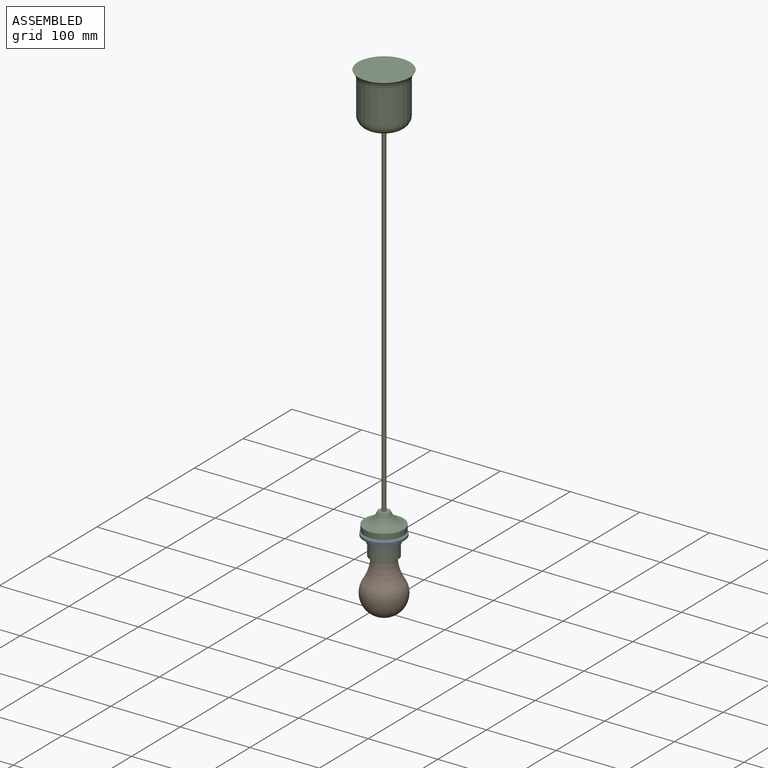
[diagram: assembled view]
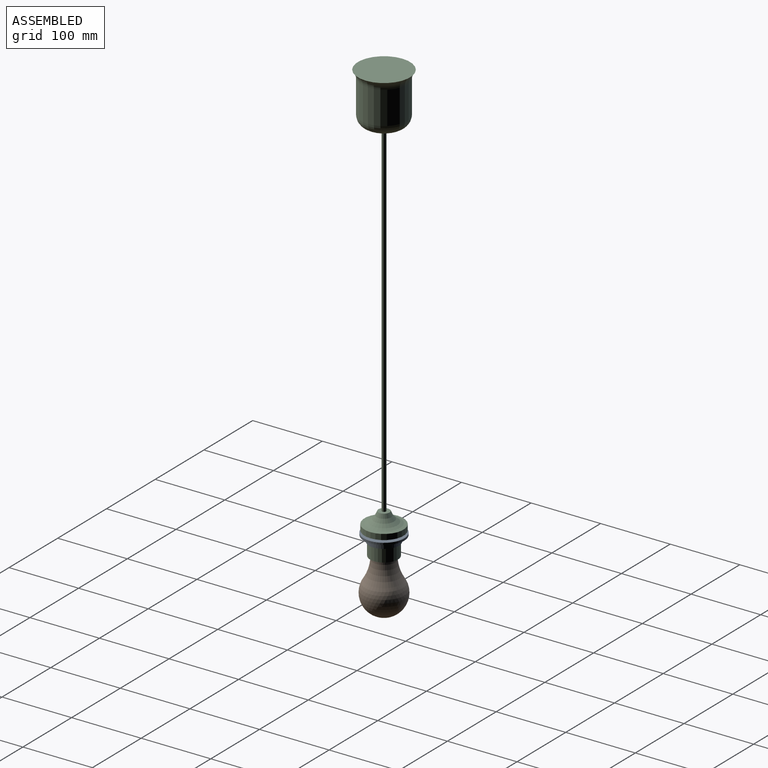
[diagram: assembled view, second angle]
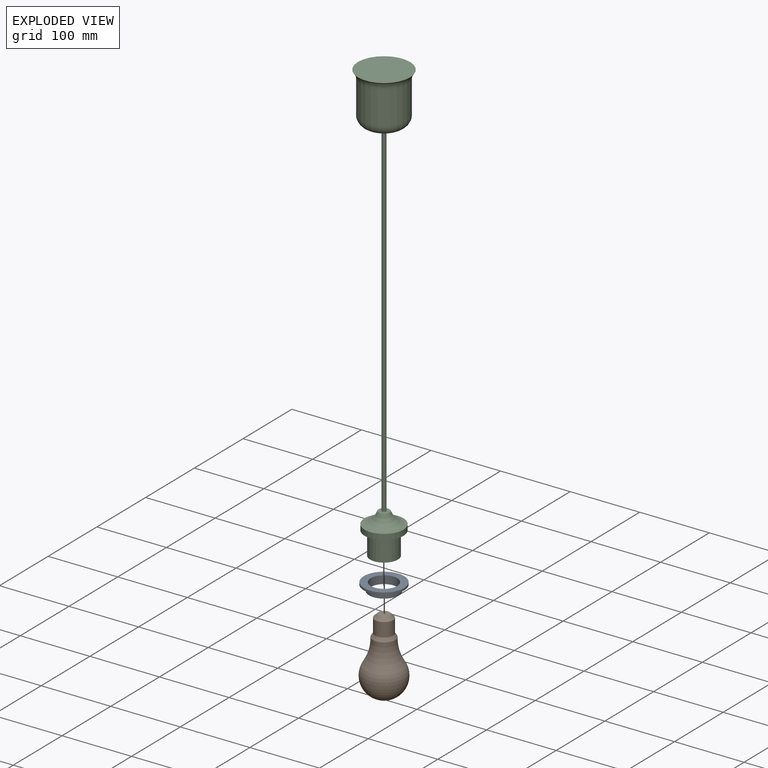
[diagram: exploded view]
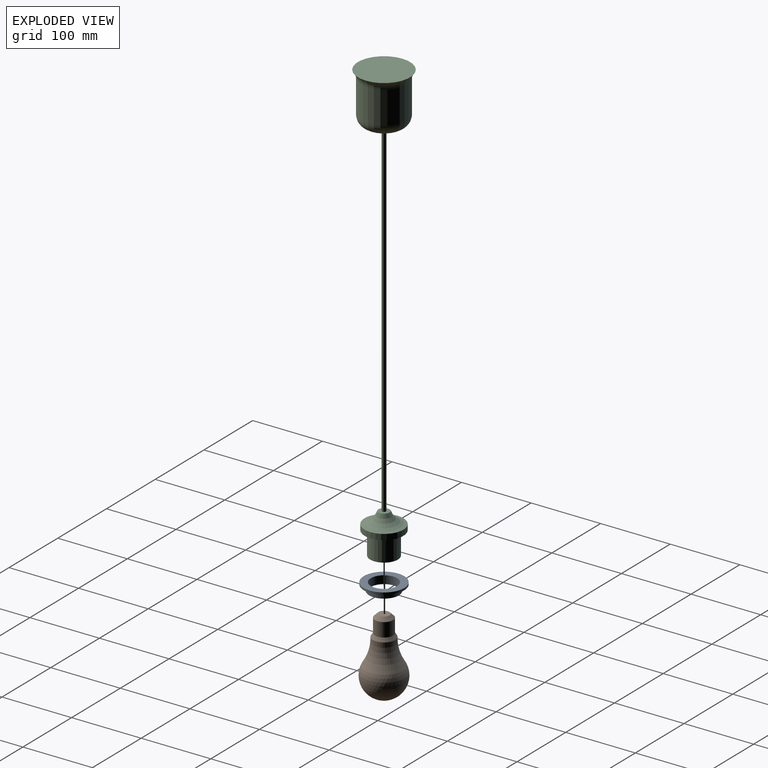
[diagram: exploded view, second angle]
ASSEMBLY  parts=3 mates=4
PART A: 6 faces, bbox 58.1x58.1x11.5 mm
  f0: cylinder r=19mm len=38mm, axis (0,0,-1), area 1372.9mm2, adj f1,f5
  f1: plane 58.1x58.1mm, normal (0,0,-1), area 1517.3mm2, adj f0,f2
  f2: cylinder r=29.05mm len=58.1mm, axis (0,0,-1), area 547.6mm2, adj f1,f3
  f3: plane 58.1x58.1mm, normal (0,0,1), area 1199.2mm2, adj f2,f4
  f4: cylinder r=21.5mm len=43mm, axis (0,0,-1), area 1148.3mm2, adj f3,f5
  f5: plane 43x43mm, normal (0,0,1), area 318.1mm2, adj f0,f4
PART B: 6 faces, bbox 72.2x72.2x120.8 mm
  f0: sphere r=30mm, area 8859.3mm2, adj f1
  f1: torus R=75.97mm, axis (0,0,-1), area 4080.5mm2, adj f0,f2
  f2: cone r=13mm half-angle=31deg, axis (0,0,-1), area 531.2mm2, adj f1,f3
  f3: cylinder r=13mm len=26mm, axis (0,0,-1), area 1633.6mm2, adj f2,f4
  f4: cone r=8mm half-angle=45deg, axis (0,0,-1), area 466.5mm2, adj f3,f5
  f5: plane 16x16mm, normal (0,0,1), area 201.1mm2, adj f4
PART C: 14 faces, bbox 103.9x103.9x635.3 mm
  f0: plane 25x25mm, normal (0,0,-1), area 490.9mm2, adj f1
  f1: cylinder r=12.5mm len=32mm, axis (0,0,1), area 2513.3mm2, adj f0,f2
  f2: plane 40x40mm, normal (0,0,-1), area 765.8mm2, adj f1,f3
  f3: cylinder r=20mm len=40mm, axis (0,0,1), area 4146.9mm2, adj f2,f4
  f4: plane 56x56mm, normal (0,0,-1), area 1206.4mm2, adj f3,f5
  f5: cylinder r=28mm len=56mm, axis (0,0,1), area 1407.4mm2, adj f4,f6
  f6: torus R=31.78mm, axis (0,0,1), area 2847.8mm2, adj f5,f7
  f7: plane 16x16mm, normal (0,0,1), area 172.8mm2, adj f6,f8
  f8: cylinder r=3mm len=500mm, axis (0,0,1), area 9424.8mm2, adj f7,f9
  f9: plane 36x36mm, normal (0,0,-1), area 989.6mm2, adj f8,f10
  f10: torus R=18mm, axis (0,0,1), area 4078.5mm2, adj f9,f11
  f11: cylinder r=33mm len=66mm, axis (0,0,1), area 9804.9mm2, adj f10,f12
  f12: torus R=48mm, axis (0,0,1), area 2588.7mm2, adj f11,f13
  f13: plane 75x75mm, normal (0,0,1), area 4417.9mm2, adj f12
PLACE A rot(axis=(1,0,0),180deg) t=(-135.94,83.77,-42.12)mm
PLACE B rot(axis=(0,0,-1),90deg) t=(-135.94,83.77,-40.12)mm
PLACE C t=(-135.94,83.77,-72.12)mm fixed
MATE planar C.f1 <-> B.f4  axis (0,0,-1) through (-135.94,83.77,-40.12)mm
MATE planar C.f12 <-> A.f0  axis (0,0,-1) through (-135.94,83.77,-39.12)mm
MATE cylindrical A.f0 <-> C.f1  axis (0,0,1) through (-135.94,83.77,-47.87)mm
MATE cylindrical B.f4 <-> C.f1  axis (0,0,-1) through (-135.94,83.77,-55.12)mm
